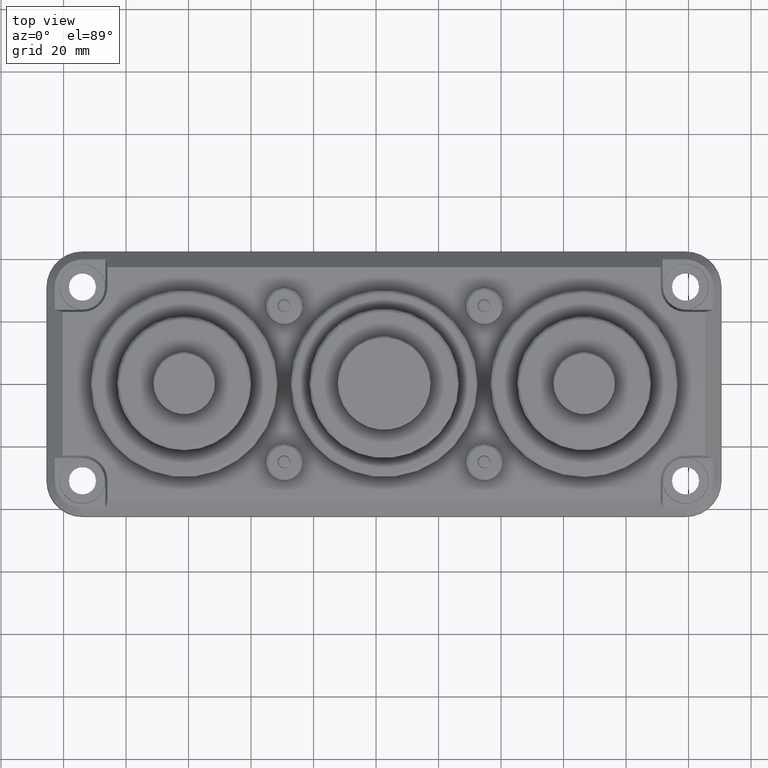
[diagram: clean part render]
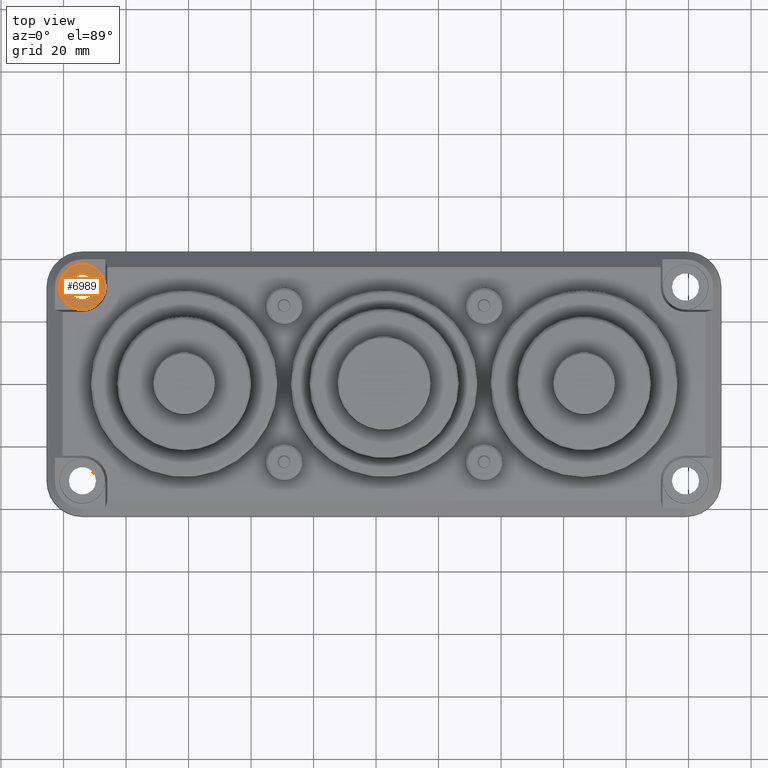
[diagram: same view with one face highlighted and labeled with its STEP entity id]
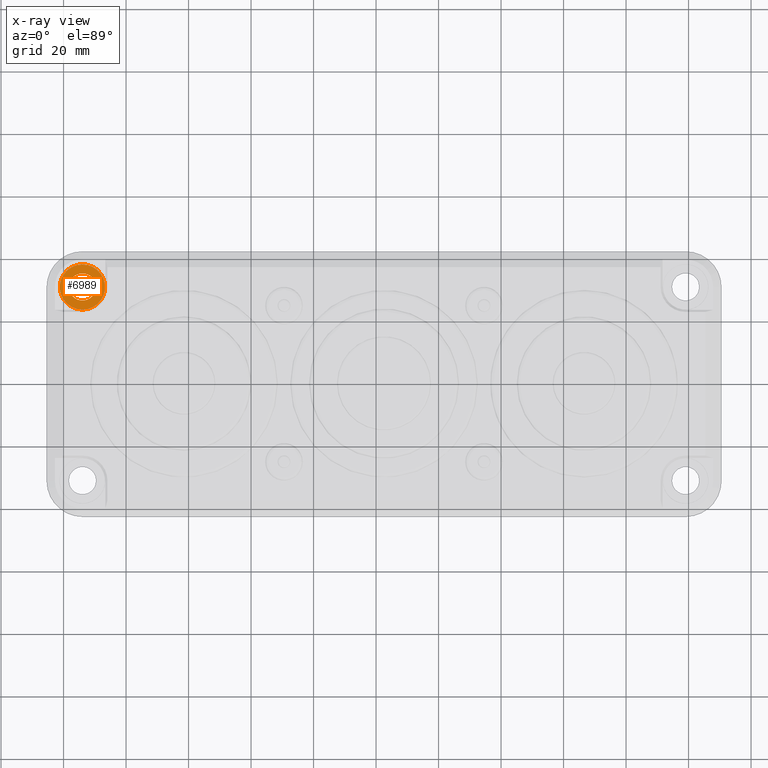
[diagram: x-ray of the same camera — body ghosted, the highlighted face saturated]
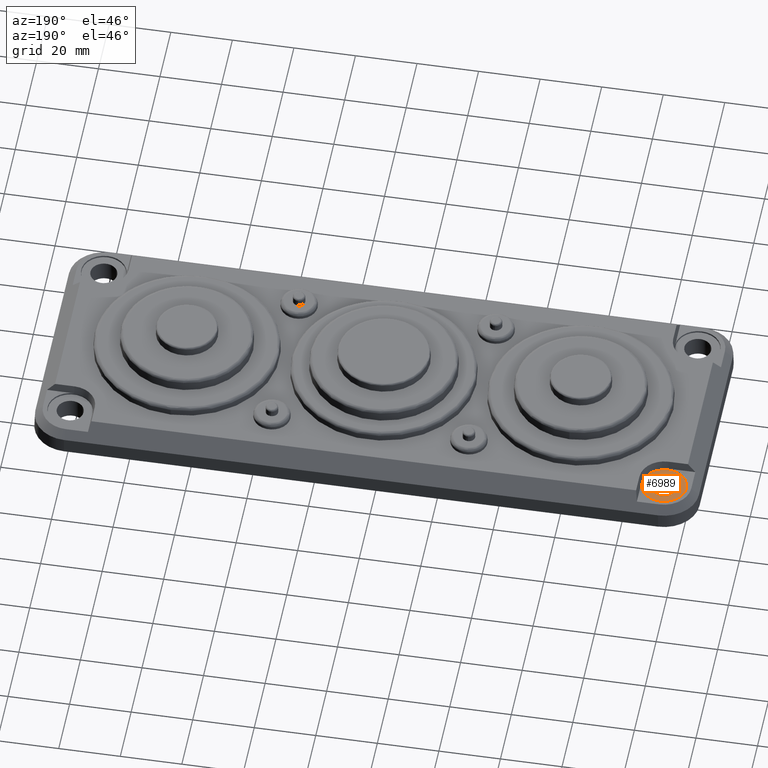
[diagram: same view with one face highlighted and labeled with its STEP entity id]
A machine part, top view. The second image highlights one B-rep face of the part: STEP entity #6989.
The next image is the same camera in x-ray: the body ghosted, the highlighted face saturated — about 0% of this face is hidden behind the body in this view.
A second angle (auxiliary view) of the same face is appended — the face is thin or edge-on in the first view.
In plain terms, the highlighted planar face has unit normal (0, 0, 1).
Its self-contained STEP definition (entity closure, byte-faithful):
#286 = CIRCLE ( 'NONE', #7533, 7.241963528567985100 ) ;
#381 = EDGE_LOOP ( 'NONE', ( #9508, #8501 ) ) ;
#422 = DIRECTION ( 'NONE',  ( -0.0000000000000000000, 0.0000000000000000000, -1.000000000000000000 ) ) ;
#740 = ORIENTED_EDGE ( 'NONE', *, *, #9238, .T. ) ;
#828 = EDGE_LOOP ( 'NONE', ( #740, #4645 ) ) ;
#908 = AXIS2_PLACEMENT_3D ( 'NONE', #8006, #422, #9456 ) ;
#1207 = EDGE_CURVE ( 'NONE', #1770, #6602, #3706, .T. ) ;
#1610 = AXIS2_PLACEMENT_3D ( 'NONE', #2133, #9729, #6653 ) ;
#1706 = DIRECTION ( 'NONE',  ( 0.0000000000000000000, -1.000000000000000000, 0.0000000000000000000 ) ) ;
#1770 = VERTEX_POINT ( 'NONE', #5238 ) ;
#2133 = CARTESIAN_POINT ( 'NONE',  ( 26.03819617907974800, 290.8491220038597500, 7.000000000005002200 ) ) ;
#2445 = VERTEX_POINT ( 'NONE', #7024 ) ;
#2858 = CARTESIAN_POINT ( 'NONE',  ( 26.03819617907974800, 283.6071584752917800, 6.999999999999999100 ) ) ;
#2875 = CIRCLE ( 'NONE', #6681, 7.241963528567985100 ) ;
#3706 = CIRCLE ( 'NONE', #1610, 4.355554613559301700 ) ;
#3774 = PLANE ( 'NONE',  #5069 ) ;
#4011 = FACE_BOUND ( 'NONE', #381, .T. ) ;
#4137 = DIRECTION ( 'NONE',  ( 0.0000000000000000000, 5.916416835270196200E-017, 1.000000000000000000 ) ) ;
#4524 = CARTESIAN_POINT ( 'NONE',  ( 26.03819617907974800, 290.8491220038597500, 6.999999999999999100 ) ) ;
#4645 = ORIENTED_EDGE ( 'NONE', *, *, #5787, .T. ) ;
#4711 = CARTESIAN_POINT ( 'NONE',  ( 30.39375079263905000, 290.8491220038597500, 7.000000000005002200 ) ) ;
#5069 = AXIS2_PLACEMENT_3D ( 'NONE', #5163, #6694, #6795 ) ;
#5163 = CARTESIAN_POINT ( 'NONE',  ( 33.36832319800194600, 290.8491220038597500, 7.000000000000000000 ) ) ;
#5185 = FACE_OUTER_BOUND ( 'NONE', #828, .T. ) ;
#5238 = CARTESIAN_POINT ( 'NONE',  ( 21.68264156552044500, 290.8491220038597500, 7.000000000005002200 ) ) ;
#5787 = EDGE_CURVE ( 'NONE', #2445, #9336, #286, .T. ) ;
#6602 = VERTEX_POINT ( 'NONE', #4711 ) ;
#6653 = DIRECTION ( 'NONE',  ( -1.000000000000000000, 0.0000000000000000000, 0.0000000000000000000 ) ) ;
#6681 = AXIS2_PLACEMENT_3D ( 'NONE', #8723, #4137, #7243 ) ;
#6694 = DIRECTION ( 'NONE',  ( 0.0000000000000000000, 0.0000000000000000000, 1.000000000000000000 ) ) ;
#6795 = DIRECTION ( 'NONE',  ( 1.000000000000000000, 0.0000000000000000000, -0.0000000000000000000 ) ) ;
#6989 = ADVANCED_FACE ( 'NONE', ( #5185, #4011 ), #3774, .T. ) ;
#7024 = CARTESIAN_POINT ( 'NONE',  ( 26.03819617907974800, 298.0910855324277700, 6.999999999999999100 ) ) ;
#7243 = DIRECTION ( 'NONE',  ( 0.0000000000000000000, -1.000000000000000000, 0.0000000000000000000 ) ) ;
#7533 = AXIS2_PLACEMENT_3D ( 'NONE', #4524, #9865, #1706 ) ;
#7707 = EDGE_CURVE ( 'NONE', #6602, #1770, #8254, .T. ) ;
#8006 = CARTESIAN_POINT ( 'NONE',  ( 26.03819617907974800, 290.8491220038597500, 7.000000000005002200 ) ) ;
#8254 = CIRCLE ( 'NONE', #908, 4.355554613559301700 ) ;
#8501 = ORIENTED_EDGE ( 'NONE', *, *, #7707, .T. ) ;
#8723 = CARTESIAN_POINT ( 'NONE',  ( 26.03819617907974800, 290.8491220038597500, 6.999999999999999100 ) ) ;
#9238 = EDGE_CURVE ( 'NONE', #9336, #2445, #2875, .T. ) ;
#9336 = VERTEX_POINT ( 'NONE', #2858 ) ;
#9456 = DIRECTION ( 'NONE',  ( -1.000000000000000000, 0.0000000000000000000, 0.0000000000000000000 ) ) ;
#9508 = ORIENTED_EDGE ( 'NONE', *, *, #1207, .T. ) ;
#9729 = DIRECTION ( 'NONE',  ( -0.0000000000000000000, 0.0000000000000000000, -1.000000000000000000 ) ) ;
#9865 = DIRECTION ( 'NONE',  ( 0.0000000000000000000, 5.916416835270196200E-017, 1.000000000000000000 ) ) ;